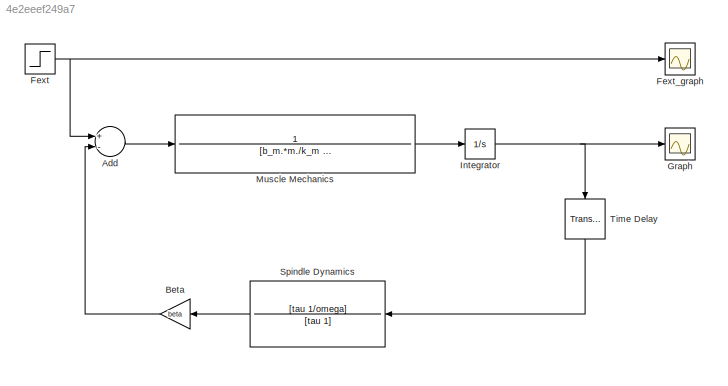
MODEL slx_4e2eeef249a7
KIND model
CONFIG AbsTol = auto
CONFIG EnableMultiTasking = off
CONFIG FixedStep = auto
CONFIG MaxStep = auto
CONFIG MinStep = auto
CONFIG RelTol = 1e-3
CONFIG SampleTimeConstraint = Unconstrained
CONFIG Solver = VariableStepAuto
CONFIG SolverName = VariableStepAuto
CONFIG StartTime = 0.0
CONFIG StopTime = 6
BLOCK [Sum] Add
  InputSameDT = off
  Inputs = +-
  OutDataTypeStr = Inherit: Inherit via internal rule
  Ports = [2, 1]
  SaturateOnIntegerOverflow = off
BLOCK [Gain] Beta
  Gain = beta
  OutDataTypeStr = Inherit: Inherit via internal rule
  ParamDataTypeStr = Inherit: Inherit via internal rule
  SaturateOnIntegerOverflow = off
BLOCK [Step] Fext
  SampleTime = 0
BLOCK [Scope] Fext_graph
  Floating = off
  NumInputPorts = 1
  Ports = [1]
  ScopeSpecificationString = Simulink.scopes.TimeScopeBlockCfg('CurrentConfiguration', extmgr.ConfigurationSet(extmgr.Configuration('Core','General UI',true),extmgr.Configuration('Core','Source UI',true),extmgr.Configuration('Sources','WiredSimulink',true,'DataLoggingVariableName','ScopeData1'),extmgr.Configuration('Visuals','Time Domain',true,'SerializedDisplays',{struct('MinYLimReal','-0.125','MaxYLimReal','1.125','YLabelRe...<+1351ch>
BLOCK [Scope] Graph
  Floating = off
  NumInputPorts = 1
  Ports = [1]
  ScopeSpecificationString = Simulink.scopes.TimeScopeBlockCfg('CurrentConfiguration', extmgr.ConfigurationSet(extmgr.Configuration('Core','General UI',true),extmgr.Configuration('Core','Source UI',true),extmgr.Configuration('Sources','WiredSimulink',true),extmgr.Configuration('Visuals','Time Domain',true,'SerializedDisplays',{struct('MinYLimReal','-0.00771','MaxYLimReal','0.06943','YLabelReal','','MinYLimMag','0.00000','MaxY...<+1358ch>
BLOCK [Integrator] Integrator
  Ports = [1, 1]
BLOCK [TransferFcn] Muscle Mechanics
  Denominator = [b_m.*m./k_m m b_m]
  Numerator = 1
BLOCK [TransferFcn] Spindle Dynamics
  Denominator = [tau 1]
  Numerator = [tau 1/omega]
BLOCK [TransportDelay] Time Delay
  DelayTime = time_delay
  Ports = [1, 1]
LINE Add:1 -> Muscle Mechanics:1
LINE Beta:1 -> Add:2
NET Fext:1 -> Add:1, Fext_graph:1
NET Integrator:1 -> Graph:1, Time Delay:1
LINE Muscle Mechanics:1 -> Integrator:1
LINE Spindle Dynamics:1 -> Beta:1
LINE Time Delay:1 -> Spindle Dynamics:1
note: NET lines group one-source signal fan-out (src -> all destinations, sorted); 1:1 wires keep LINE
